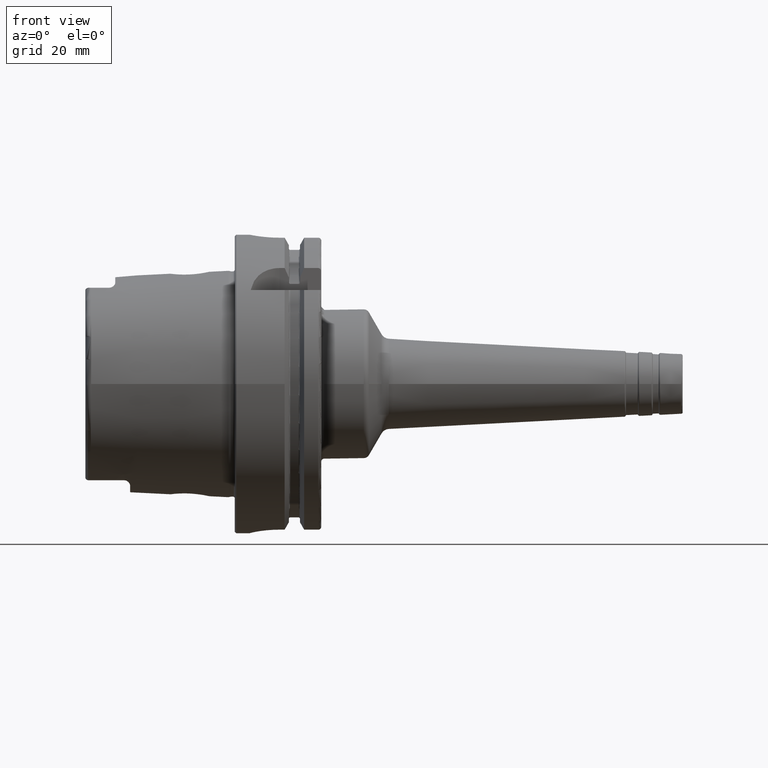
[diagram: clean part render]
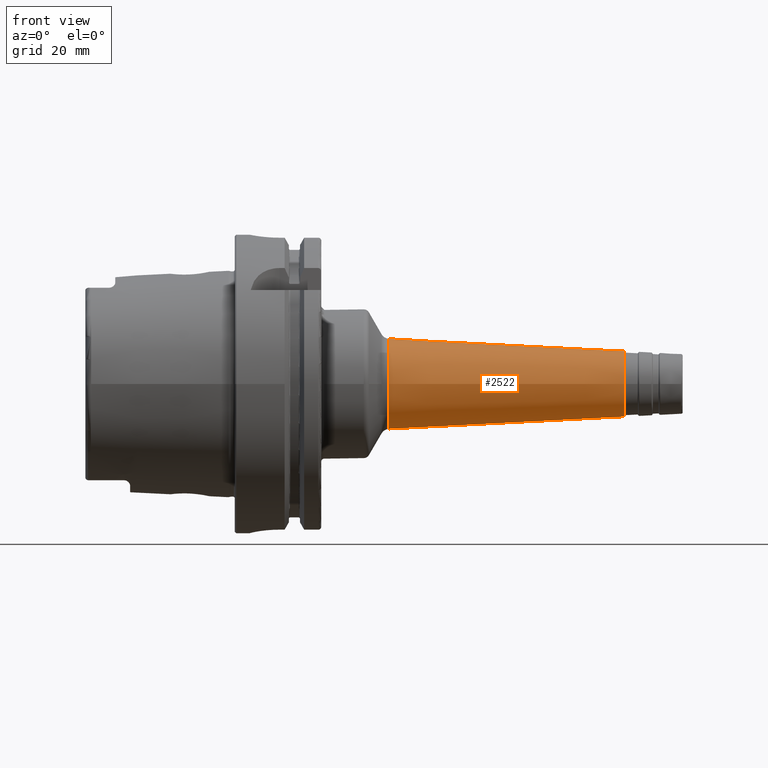
[diagram: same view with one face highlighted and labeled with its STEP entity id]
A machine part, front view. The second image highlights one B-rep face of the part: STEP entity #2522.
In plain terms, the highlighted conical surface has half-angle 3 deg.
Its self-contained STEP definition (entity closure, byte-faithful):
#185=LINE('',#4011,#299);
#299=VECTOR('',#3188,13.1247361824159);
#413=CONICAL_SURFACE('',#2735,13.1247361824159,0.0523598775598298);
#445=FACE_OUTER_BOUND('',#579,.T.);
#579=EDGE_LOOP('',(#1767,#1768,#1769,#1770,#1771,#1772,#1773,#1774));
#764=CIRCLE('',#2732,11.0207809078977);
#765=CIRCLE('',#2733,11.0207809078977);
#766=CIRCLE('',#2734,11.0207809078977);
#767=CIRCLE('',#2736,15.1555296110897);
#768=CIRCLE('',#2737,15.1555296110897);
#769=CIRCLE('',#2738,15.1555296110897);
#982=VERTEX_POINT('',#4002);
#983=VERTEX_POINT('',#4004);
#984=VERTEX_POINT('',#4006);
#985=VERTEX_POINT('',#4010);
#986=VERTEX_POINT('',#4012);
#987=VERTEX_POINT('',#4014);
#1287=EDGE_CURVE('',#982,#983,#764,.T.);
#1288=EDGE_CURVE('',#983,#984,#765,.T.);
#1289=EDGE_CURVE('',#984,#982,#766,.T.);
#1290=EDGE_CURVE('',#983,#985,#185,.T.);
#1291=EDGE_CURVE('',#986,#985,#767,.T.);
#1292=EDGE_CURVE('',#987,#986,#768,.T.);
#1293=EDGE_CURVE('',#985,#987,#769,.T.);
#1767=ORIENTED_EDGE('',*,*,#1289,.F.);
#1768=ORIENTED_EDGE('',*,*,#1288,.F.);
#1769=ORIENTED_EDGE('',*,*,#1290,.T.);
#1770=ORIENTED_EDGE('',*,*,#1291,.F.);
#1771=ORIENTED_EDGE('',*,*,#1292,.F.);
#1772=ORIENTED_EDGE('',*,*,#1293,.F.);
#1773=ORIENTED_EDGE('',*,*,#1290,.F.);
#1774=ORIENTED_EDGE('',*,*,#1287,.F.);
#2522=ADVANCED_FACE('',(#445),#413,.T.);
#2732=AXIS2_PLACEMENT_3D('',#4005,#3180,#3181);
#2733=AXIS2_PLACEMENT_3D('',#4007,#3182,#3183);
#2734=AXIS2_PLACEMENT_3D('',#4008,#3184,#3185);
#2735=AXIS2_PLACEMENT_3D('',#4009,#3186,#3187);
#2736=AXIS2_PLACEMENT_3D('',#4013,#3189,#3190);
#2737=AXIS2_PLACEMENT_3D('',#4015,#3191,#3192);
#2738=AXIS2_PLACEMENT_3D('',#4016,#3193,#3194);
#3180=DIRECTION('center_axis',(1.,0.,0.));
#3181=DIRECTION('ref_axis',(0.,-1.,3.06161699786838E-17));
#3182=DIRECTION('center_axis',(1.,0.,0.));
#3183=DIRECTION('ref_axis',(0.,-1.,3.06161699786838E-17));
#3184=DIRECTION('center_axis',(1.,0.,0.));
#3185=DIRECTION('ref_axis',(0.,-1.,3.06161699786838E-17));
#3186=DIRECTION('center_axis',(-1.,0.,0.));
#3187=DIRECTION('ref_axis',(0.,1.,0.));
#3188=DIRECTION('',(-0.998629534754574,-0.0523359562429437,-6.40930612932369E-18));
#3189=DIRECTION('center_axis',(-1.,0.,0.));
#3190=DIRECTION('ref_axis',(0.,-1.,3.06161699786838E-17));
#3191=DIRECTION('center_axis',(-1.,0.,0.));
#3192=DIRECTION('ref_axis',(0.,-1.,3.06161699786838E-17));
#3193=DIRECTION('center_axis',(-1.,0.,0.));
#3194=DIRECTION('ref_axis',(0.,-1.,3.06161699786838E-17));
#4002=CARTESIAN_POINT('',(130.522339968181,-1.34965640629612E-15,11.0207809078977));
#4004=CARTESIAN_POINT('',(130.522339968181,-11.0207809078977,-1.34965640629612E-15));
#4005=CARTESIAN_POINT('Origin',(130.522339968181,0.,-1.68707050787014E-15));
#4006=CARTESIAN_POINT('',(130.522339968181,11.0207809078977,-6.74828203148058E-16));
#4007=CARTESIAN_POINT('Origin',(130.522339968181,0.,-1.68707050787014E-15));
#4008=CARTESIAN_POINT('Origin',(130.522339968181,0.,-1.68707050787014E-15));
#4009=CARTESIAN_POINT('Origin',(90.3764817902328,0.,0.));
#4010=CARTESIAN_POINT('',(51.6266347931668,-15.1555296110897,-1.85601708276039E-15));
#4011=CARTESIAN_POINT('',(90.3764817902328,-13.1247361824159,-1.6073166155449E-15));
#4012=CARTESIAN_POINT('',(51.6266347931668,15.1555296110897,-4.64004270690098E-15));
#4013=CARTESIAN_POINT('Origin',(51.6266347931668,0.,-2.32002135345049E-15));
#4014=CARTESIAN_POINT('',(51.6266347931668,-1.85601708276039E-15,15.1555296110897));
#4015=CARTESIAN_POINT('Origin',(51.6266347931668,0.,-2.32002135345049E-15));
#4016=CARTESIAN_POINT('Origin',(51.6266347931668,0.,-2.32002135345049E-15));